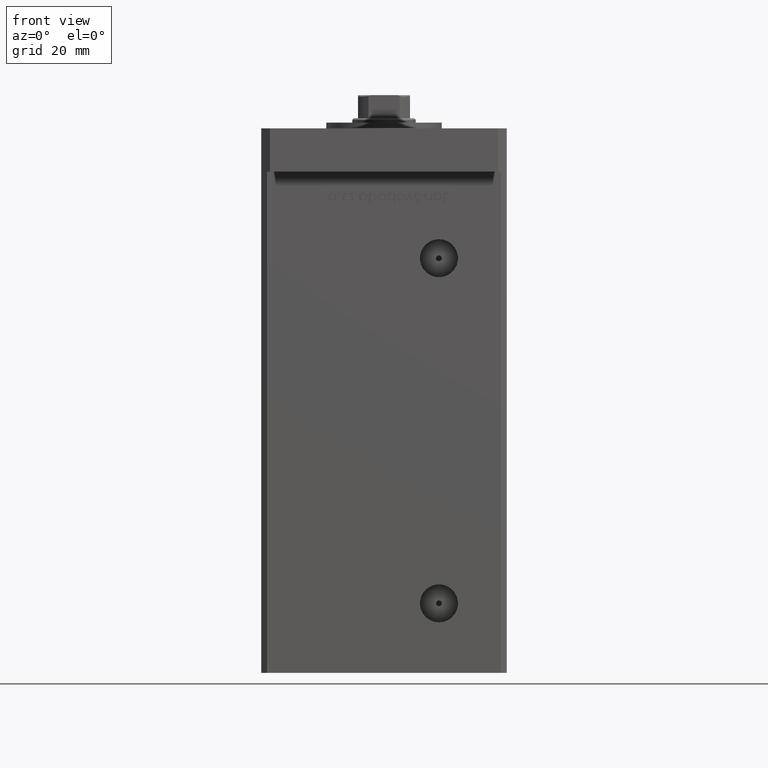
[diagram: clean part render]
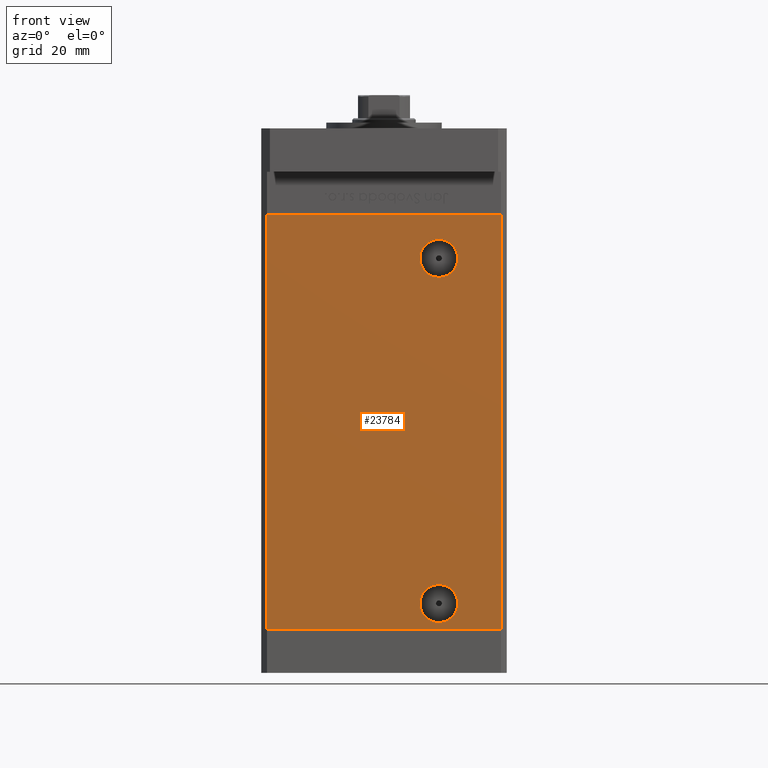
[diagram: same view with one face highlighted and labeled with its STEP entity id]
A machine part, front view. The second image highlights one B-rep face of the part: STEP entity #23784.
In plain terms, the highlighted planar face has unit normal (0, 1, 0).
Its self-contained STEP definition (entity closure, byte-faithful):
#316 = DIRECTION ( 'NONE',  ( 0.000000000000000000, 0.000000000000000000, -1.000000000000000000 ) ) ;
#494 = DIRECTION ( 'NONE',  ( 0.000000000000000000, 0.000000000000000000, -1.000000000000000000 ) ) ;
#1769 = VERTEX_POINT ( 'NONE', #50771 ) ;
#1915 = VERTEX_POINT ( 'NONE', #27422 ) ;
#1969 = CIRCLE ( 'NONE', #34905, 6.579999999999998295 ) ;
#2186 = CARTESIAN_POINT ( 'NONE',  ( 40.49999999999998579, -37.50000000000000711, 0.000000000000000000 ) ) ;
#2590 = CARTESIAN_POINT ( 'NONE',  ( 18.99999999999997513, -37.50000000000000711, 128.5000000000000000 ) ) ;
#3553 = CARTESIAN_POINT ( 'NONE',  ( 18.99999999999997513, -37.50000000000000711, 135.0800000000000125 ) ) ;
#3905 = ORIENTED_EDGE ( 'NONE', *, *, #18423, .F. ) ;
#4400 = EDGE_LOOP ( 'NONE', ( #27804, #32965 ) ) ;
#5454 = FACE_BOUND ( 'NONE', #4400, .T. ) ;
#6581 = LINE ( 'NONE', #39424, #40226 ) ;
#7692 = VECTOR ( 'NONE', #40633, 1000.000000000000000 ) ;
#7788 = EDGE_CURVE ( 'NONE', #20842, #10338, #9533, .T. ) ;
#8060 = CARTESIAN_POINT ( 'NONE',  ( -40.49999999999998579, -37.50000000000000711, 143.5000000000000000 ) ) ;
#9533 = CIRCLE ( 'NONE', #32055, 6.579999999999988525 ) ;
#9792 = DIRECTION ( 'NONE',  ( 0.000000000000000000, -1.000000000000000000, 0.000000000000000000 ) ) ;
#10338 = VERTEX_POINT ( 'NONE', #3553 ) ;
#11778 = AXIS2_PLACEMENT_3D ( 'NONE', #43966, #35291, #35831 ) ;
#12444 = CIRCLE ( 'NONE', #36679, 6.579999999999988525 ) ;
#12799 = FACE_OUTER_BOUND ( 'NONE', #39479, .T. ) ;
#13325 = DIRECTION ( 'NONE',  ( 0.000000000000000000, 0.000000000000000000, -1.000000000000000000 ) ) ;
#14166 = AXIS2_PLACEMENT_3D ( 'NONE', #17125, #37486, #316 ) ;
#14497 = LINE ( 'NONE', #18588, #28713 ) ;
#17125 = CARTESIAN_POINT ( 'NONE',  ( 18.99999999999998934, -37.50000000000000711, 9.000000000000007105 ) ) ;
#18192 = VERTEX_POINT ( 'NONE', #2186 ) ;
#18348 = DIRECTION ( 'NONE',  ( -0.000000000000000000, 1.000000000000000000, -0.000000000000000000 ) ) ;
#18423 = EDGE_CURVE ( 'NONE', #23246, #18192, #38757, .T. ) ;
#18588 = CARTESIAN_POINT ( 'NONE',  ( -40.49999999999998579, -37.50000000000000711, 0.000000000000000000 ) ) ;
#18844 = ORIENTED_EDGE ( 'NONE', *, *, #19590, .T. ) ;
#19590 = EDGE_CURVE ( 'NONE', #43900, #1769, #6581, .T. ) ;
#20767 = EDGE_CURVE ( 'NONE', #1915, #32327, #52256, .T. ) ;
#20836 = ORIENTED_EDGE ( 'NONE', *, *, #42124, .T. ) ;
#20842 = VERTEX_POINT ( 'NONE', #34472 ) ;
#22929 = DIRECTION ( 'NONE',  ( 1.000000000000000000, 0.000000000000000000, 0.000000000000000000 ) ) ;
#23246 = VERTEX_POINT ( 'NONE', #25679 ) ;
#23784 = ADVANCED_FACE ( 'NONE', ( #5454, #12799, #38574 ), #47240, .F. ) ;
#24083 = LINE ( 'NONE', #8060, #7692 ) ;
#24175 = EDGE_LOOP ( 'NONE', ( #50953, #46412 ) ) ;
#25192 = CARTESIAN_POINT ( 'NONE',  ( 18.99999999999997513, -37.50000000000000711, 128.5000000000000000 ) ) ;
#25679 = CARTESIAN_POINT ( 'NONE',  ( 40.49999999999998579, -37.50000000000000711, 143.5000000000000000 ) ) ;
#27422 = CARTESIAN_POINT ( 'NONE',  ( 18.99999999999998934, -37.50000000000000711, 15.58000000000000718 ) ) ;
#27804 = ORIENTED_EDGE ( 'NONE', *, *, #47666, .F. ) ;
#28713 = VECTOR ( 'NONE', #22929, 1000.000000000000000 ) ;
#31150 = CARTESIAN_POINT ( 'NONE',  ( 40.49999999999998579, -37.50000000000000711, 143.5000000000000000 ) ) ;
#32055 = AXIS2_PLACEMENT_3D ( 'NONE', #25192, #37674, #494 ) ;
#32327 = VERTEX_POINT ( 'NONE', #40139 ) ;
#32965 = ORIENTED_EDGE ( 'NONE', *, *, #20767, .F. ) ;
#34108 = CARTESIAN_POINT ( 'NONE',  ( -40.49999999999998579, -37.50000000000000711, 143.5000000000000000 ) ) ;
#34472 = CARTESIAN_POINT ( 'NONE',  ( 18.99999999999997513, -37.50000000000000711, 121.9200000000000159 ) ) ;
#34905 = AXIS2_PLACEMENT_3D ( 'NONE', #47501, #9792, #13325 ) ;
#35049 = EDGE_CURVE ( 'NONE', #43900, #23246, #24083, .T. ) ;
#35140 = ORIENTED_EDGE ( 'NONE', *, *, #35049, .F. ) ;
#35291 = DIRECTION ( 'NONE',  ( 0.000000000000000000, 1.000000000000000000, 0.000000000000000000 ) ) ;
#35831 = DIRECTION ( 'NONE',  ( 0.000000000000000000, -0.000000000000000000, 1.000000000000000000 ) ) ;
#36679 = AXIS2_PLACEMENT_3D ( 'NONE', #2590, #18348, #43029 ) ;
#37486 = DIRECTION ( 'NONE',  ( 0.000000000000000000, -1.000000000000000000, 0.000000000000000000 ) ) ;
#37674 = DIRECTION ( 'NONE',  ( -0.000000000000000000, 1.000000000000000000, -0.000000000000000000 ) ) ;
#38496 = DIRECTION ( 'NONE',  ( -0.000000000000000000, -0.000000000000000000, -1.000000000000000000 ) ) ;
#38574 = FACE_BOUND ( 'NONE', #24175, .T. ) ;
#38757 = LINE ( 'NONE', #31150, #46251 ) ;
#38879 = DIRECTION ( 'NONE',  ( -0.000000000000000000, -0.000000000000000000, -1.000000000000000000 ) ) ;
#39424 = CARTESIAN_POINT ( 'NONE',  ( -40.49999999999998579, -37.50000000000000711, 143.5000000000000000 ) ) ;
#39479 = EDGE_LOOP ( 'NONE', ( #20836, #3905, #35140, #18844 ) ) ;
#40139 = CARTESIAN_POINT ( 'NONE',  ( 18.99999999999998934, -37.50000000000000711, 2.420000000000009699 ) ) ;
#40226 = VECTOR ( 'NONE', #38879, 1000.000000000000000 ) ;
#40633 = DIRECTION ( 'NONE',  ( 1.000000000000000000, 0.000000000000000000, 0.000000000000000000 ) ) ;
#42124 = EDGE_CURVE ( 'NONE', #1769, #18192, #14497, .T. ) ;
#43029 = DIRECTION ( 'NONE',  ( 0.000000000000000000, 0.000000000000000000, -1.000000000000000000 ) ) ;
#43900 = VERTEX_POINT ( 'NONE', #34108 ) ;
#43966 = CARTESIAN_POINT ( 'NONE',  ( -40.49999999999998579, -37.50000000000000711, 143.5000000000000000 ) ) ;
#46251 = VECTOR ( 'NONE', #38496, 1000.000000000000000 ) ;
#46412 = ORIENTED_EDGE ( 'NONE', *, *, #52187, .T. ) ;
#47240 = PLANE ( 'NONE',  #11778 ) ;
#47501 = CARTESIAN_POINT ( 'NONE',  ( 18.99999999999998934, -37.50000000000000711, 9.000000000000007105 ) ) ;
#47666 = EDGE_CURVE ( 'NONE', #32327, #1915, #1969, .T. ) ;
#50771 = CARTESIAN_POINT ( 'NONE',  ( -40.49999999999998579, -37.50000000000000711, 0.000000000000000000 ) ) ;
#50953 = ORIENTED_EDGE ( 'NONE', *, *, #7788, .T. ) ;
#52187 = EDGE_CURVE ( 'NONE', #10338, #20842, #12444, .T. ) ;
#52256 = CIRCLE ( 'NONE', #14166, 6.579999999999998295 ) ;